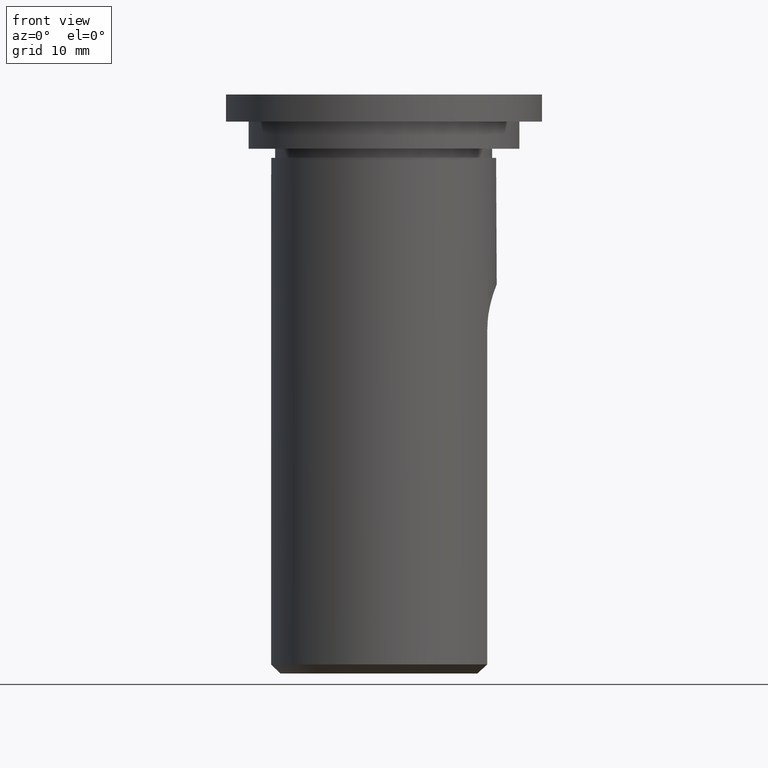
[diagram: clean part render]
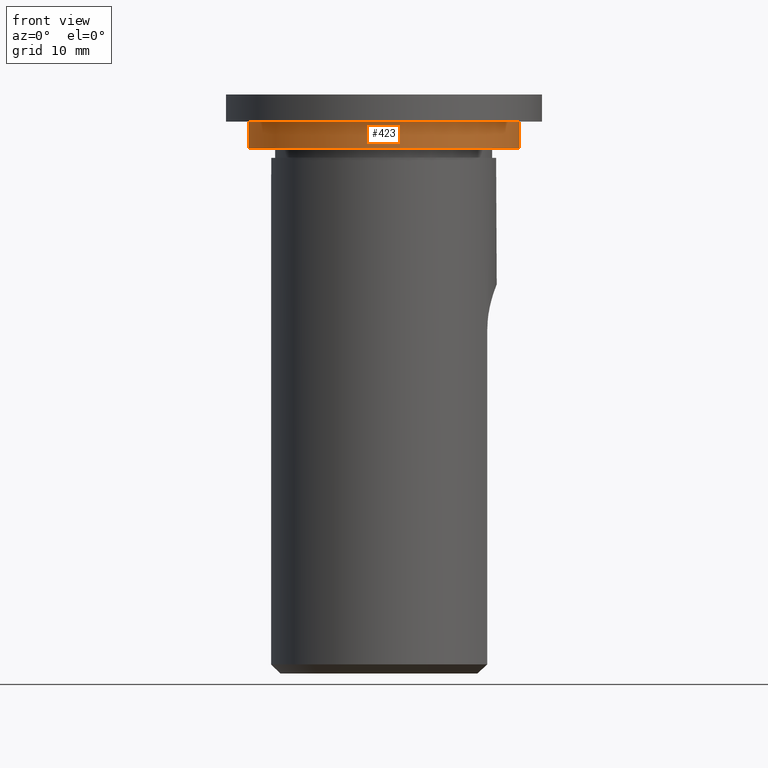
[diagram: same view with one face highlighted and labeled with its STEP entity id]
A machine part, front view. The second image highlights one B-rep face of the part: STEP entity #423.
In plain terms, the highlighted cylindrical surface (bore or boss wall) has radius 15 mm, axis along (0, 0, -1).
Its self-contained STEP definition (entity closure, byte-faithful):
#57=FACE_OUTER_BOUND('',#86,.T.);
#86=EDGE_LOOP('',(#368,#369,#370,#371));
#129=LINE('',#828,#156);
#156=VECTOR('',#582,15.);
#174=CIRCLE('',#475,15.);
#175=CIRCLE('',#477,15.);
#216=VERTEX_POINT('',#823);
#217=VERTEX_POINT('',#826);
#270=EDGE_CURVE('',#216,#216,#174,.T.);
#271=EDGE_CURVE('',#217,#217,#175,.T.);
#272=EDGE_CURVE('',#217,#216,#129,.T.);
#368=ORIENTED_EDGE('',*,*,#271,.F.);
#369=ORIENTED_EDGE('',*,*,#272,.T.);
#370=ORIENTED_EDGE('',*,*,#270,.T.);
#371=ORIENTED_EDGE('',*,*,#272,.F.);
#403=CYLINDRICAL_SURFACE('',#476,15.);
#423=ADVANCED_FACE('',(#57),#403,.T.);
#475=AXIS2_PLACEMENT_3D('',#824,#576,#577);
#476=AXIS2_PLACEMENT_3D('',#825,#578,#579);
#477=AXIS2_PLACEMENT_3D('',#827,#580,#581);
#576=DIRECTION('center_axis',(0.,0.,-1.));
#577=DIRECTION('ref_axis',(1.,0.,0.));
#578=DIRECTION('center_axis',(0.,0.,-1.));
#579=DIRECTION('ref_axis',(-1.,0.,0.));
#580=DIRECTION('center_axis',(0.,0.,-1.));
#581=DIRECTION('ref_axis',(1.,0.,0.));
#582=DIRECTION('',(0.,0.,1.));
#823=CARTESIAN_POINT('',(15.,-1.83697019872103E-15,-3.));
#824=CARTESIAN_POINT('Origin',(0.,0.,-3.));
#825=CARTESIAN_POINT('Origin',(0.,0.,-4.5));
#826=CARTESIAN_POINT('',(15.,-1.83697019872103E-15,-6.00000000000001));
#827=CARTESIAN_POINT('Origin',(0.,0.,-6.00000000000001));
#828=CARTESIAN_POINT('',(15.,-1.83697019872103E-15,-4.5));